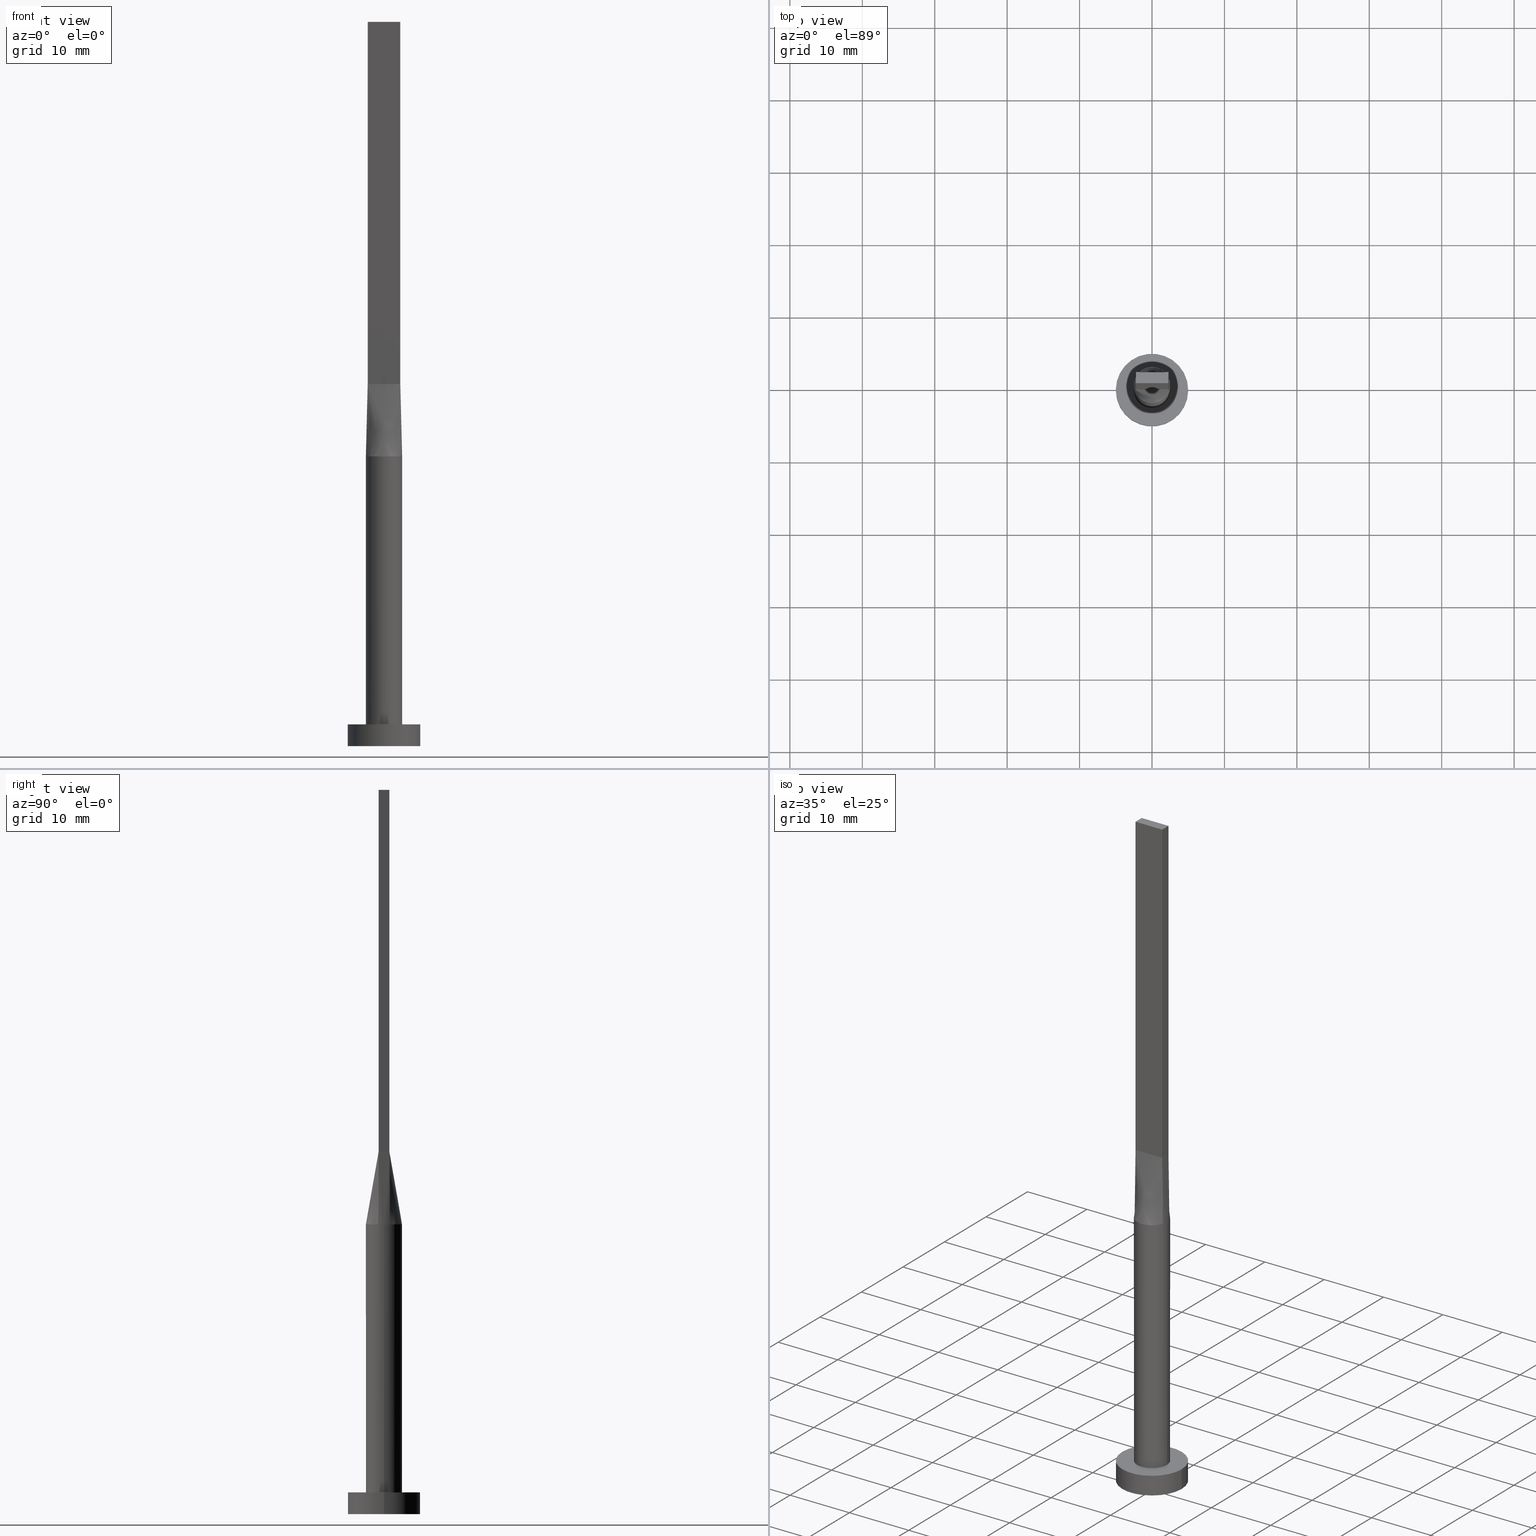
[diagram: canonical four-view strip — front | top / right | iso, engineering-drawing reading convention]
A machine part, canonical four-view strip (front | top / right | iso — engineering-drawing reading convention). The complete STEP part file that produces these views, byte-faithful:
ISO-10303-21;
HEADER;
FILE_DESCRIPTION (( 'STEP AP203' ),
    '1' );
FILE_NAME ('55a2.STEP',
    '2023-02-13T11:20:50',
    ( '' ),
    ( '' ),
    'SwSTEP 2.0',
    'SolidWorks 2019',
    '' );
FILE_SCHEMA (( 'CONFIG_CONTROL_DESIGN' ));
ENDSEC;

DATA;
#1 = CYLINDRICAL_SURFACE ( 'NONE', #577, 5.000000000000000000 ) ;
#2 = EDGE_CURVE ( 'NONE', #378, #394, #535, .T. ) ;
#3 = LINE ( 'NONE', #243, #179 ) ;
#4 = B_SPLINE_SURFACE_WITH_KNOTS ( 'NONE', 3, 1, ( 
 ( #30, #261 ),
 ( #441, #512 ),
 ( #389, #312 ),
 ( #481, #37 ),
 ( #355, #167 ),
 ( #80, #439 ),
 ( #472, #395 ),
 ( #521, #518 ),
 ( #478, #78 ),
 ( #73, #115 ),
 ( #214, #35 ),
 ( #218, #468 ),
 ( #398, #266 ),
 ( #359, #436 ),
 ( #402, #393 ),
 ( #165, #216 ),
 ( #475, #221 ),
 ( #258, #125 ) ),
 .UNSPECIFIED., .F., .F., .F.,
 ( 4, 2, 2, 2, 2, 2, 2, 2, 4 ),
 ( 2, 2 ),
 ( 0.000000000000000000, 0.1250000000000000555, 0.2500000000000001110, 0.3750000000000001110, 0.5000000000000001110, 0.6250000000000000000, 0.7500000000000000000, 0.8749999999999998890, 1.000000000000000000 ),
 ( 0.000000000000000000, 1.000000000000000000 ),
 .UNSPECIFIED. ) ;
#5 = FACE_BOUND ( 'NONE', #131, .T. ) ;
#6 = ORIENTED_EDGE ( 'NONE', *, *, #453, .F. ) ;
#7 = CARTESIAN_POINT ( 'NONE',  ( 0.000000000000000000, 0.000000000000000000, 40.00000000000000000 ) ) ;
#8 = ADVANCED_FACE ( 'NONE', ( #308 ), #522, .T. ) ;
#9 = FACE_OUTER_BOUND ( 'NONE', #129, .T. ) ;
#10 = VERTEX_POINT ( 'NONE', #525 ) ;
#11 = CARTESIAN_POINT ( 'NONE',  ( -2.309208245126284975, 0.9780694150420951027, 40.00000000000000000 ) ) ;
#12 = VECTOR ( 'NONE', #27, 1000.000000000000000 ) ;
#13 = CARTESIAN_POINT ( 'NONE',  ( -2.500000000000000444, -1.570839010700814298E-16, 40.00000000000000711 ) ) ;
#14 = ORIENTED_EDGE ( 'NONE', *, *, #332, .T. ) ;
#15 = AXIS2_PLACEMENT_3D ( 'NONE', #446, #43, #327 ) ;
#16 = VECTOR ( 'NONE', #310, 1000.000000000000000 ) ;
#17 = APPROVAL_DATE_TIME ( #150, #20 ) ;
#18 = CARTESIAN_POINT ( 'NONE',  ( -2.249999999999999556, 0.7500000000000002220, 100.0000000000000000 ) ) ;
#19 = ORIENTED_EDGE ( 'NONE', *, *, #361, .T. ) ;
#20 = APPROVAL ( #196, 'NEUR�EN�' ) ;
#21 = APPROVAL_ROLE ( '' ) ;
#22 = LINE ( 'NONE', #419, #202 ) ;
#23 = ORIENTED_EDGE ( 'NONE', *, *, #225, .T. ) ;
#24 = DATE_AND_TIME ( #340, #449 ) ;
#25 = VECTOR ( 'NONE', #93, 1000.000000000000000 ) ;
#26 = DIRECTION ( 'NONE',  ( 1.000000000000000000, 0.000000000000000000, 0.000000000000000000 ) ) ;
#27 = DIRECTION ( 'NONE',  ( -1.000000000000000000, 0.000000000000000000, 0.000000000000000000 ) ) ;
#28 = PERSON_AND_ORGANIZATION ( #438, #268 ) ;
#29 = VECTOR ( 'NONE', #239, 1000.000000000000114 ) ;
#30 = CARTESIAN_POINT ( 'NONE',  ( -2.371708245126284975, -0.7905694150420944366, 40.00000000000000000 ) ) ;
#31 = DIRECTION ( 'NONE',  ( 2.891205793294678819E-16, 1.000000000000000000, 0.000000000000000000 ) ) ;
#32 = ADVANCED_FACE ( 'NONE', ( #34 ), #390, .T. ) ;
#33 = CARTESIAN_POINT ( 'NONE',  ( -1.145194483530141527, 2.241235424885160921, 40.00000000000000000 ) ) ;
#34 = FACE_OUTER_BOUND ( 'NONE', #274, .T. ) ;
#35 = CARTESIAN_POINT ( 'NONE',  ( 0.3750000000000000000, -0.7499999999999996669, 50.00000000000000000 ) ) ;
#36 = VERTEX_POINT ( 'NONE', #403 ) ;
#37 = CARTESIAN_POINT ( 'NONE',  ( -1.499999999999999334, -0.7499999999999995559, 50.00000000000000000 ) ) ;
#38 = CARTESIAN_POINT ( 'NONE',  ( 2.250000000000000000, -0.7499999999999997780, 50.00000000000000000 ) ) ;
#39 = EDGE_CURVE ( 'NONE', #155, #212, #474, .T. ) ;
#40 = CARTESIAN_POINT ( 'NONE',  ( 2.371708245126284531, 0.7905694150420949917, 40.00000000000000000 ) ) ;
#41 = CARTESIAN_POINT ( 'NONE',  ( -2.371775648085652222, -0.7905922034696525325, 40.00000000000000000 ) ) ;
#42 =( LENGTH_UNIT ( ) NAMED_UNIT ( * ) SI_UNIT ( .MILLI., .METRE. ) );
#43 = DIRECTION ( 'NONE',  ( 0.000000000000000000, -1.000000000000000000, 0.000000000000000000 ) ) ;
#44 = VECTOR ( 'NONE', #85, 1000.000000000000000 ) ;
#45 = CARTESIAN_POINT ( 'NONE',  ( 0.000000000000000000, 0.000000000000000000, 0.000000000000000000 ) ) ;
#46 = ORIENTED_EDGE ( 'NONE', *, *, #75, .F. ) ;
#47 = AXIS2_PLACEMENT_3D ( 'NONE', #383, #281, #61 ) ;
#48 = DIRECTION ( 'NONE',  ( 0.000000000000000000, 0.000000000000000000, 1.000000000000000000 ) ) ;
#49 = DIRECTION ( 'NONE',  ( 1.000000000000000000, 0.000000000000000000, 0.000000000000000000 ) ) ;
#50 = DIRECTION ( 'NONE',  ( -0.01216982305197521208, 0.004056607683991797497, 0.9999177162851859979 ) ) ;
#51 = APPROVAL_PERSON_ORGANIZATION ( #301, #20, #21 ) ;
#52 = CC_DESIGN_PERSON_AND_ORGANIZATION_ASSIGNMENT ( #28, #203, ( #317 ) ) ;
#53 = LINE ( 'NONE', #528, #567 ) ;
#54 = CARTESIAN_POINT ( 'NONE',  ( 0.000000000000000000, 0.000000000000000000, 40.00000000000000000 ) ) ;
#55 = VERTEX_POINT ( 'NONE', #84 ) ;
#56 = CARTESIAN_POINT ( 'NONE',  ( -2.218933079238281536, 1.174882007251999871, 40.00000000000001421 ) ) ;
#57 = CYLINDRICAL_SURFACE ( 'NONE', #570, 5.000000000000000000 ) ;
#58 = ORIENTED_EDGE ( 'NONE', *, *, #127, .T. ) ;
#59 = COORDINATED_UNIVERSAL_TIME_OFFSET ( 1, 0, .AHEAD. ) ;
#60 = AXIS2_PLACEMENT_3D ( 'NONE', #174, #473, #31 ) ;
#61 = DIRECTION ( 'NONE',  ( 1.000000000000000000, 0.000000000000000000, 0.000000000000000000 ) ) ;
#62 = ORIENTED_EDGE ( 'NONE', *, *, #172, .T. ) ;
#63 = CIRCLE ( 'NONE', #47, 2.500000000000000000 ) ;
#64 = DATE_AND_TIME ( #344, #400 ) ;
#65 = AXIS2_PLACEMENT_3D ( 'NONE', #144, #331, #499 ) ;
#66 = DIRECTION ( 'NONE',  ( -2.891205793294678326E-16, 1.000000000000000000, -0.000000000000000000 ) ) ;
#67 = ORIENTED_EDGE ( 'NONE', *, *, #529, .F. ) ;
#68 = PERSON_AND_ORGANIZATION ( #438, #268 ) ;
#69 = CARTESIAN_POINT ( 'NONE',  ( -1.799471046981195199, 1.755719709239274229, 39.99999999999998579 ) ) ;
#70 = VERTEX_POINT ( 'NONE', #119 ) ;
#71 = DATE_AND_TIME ( #557, #124 ) ;
#72 = AXIS2_PLACEMENT_3D ( 'NONE', #530, #48, #576 ) ;
#73 = CARTESIAN_POINT ( 'NONE',  ( 0.3003163416900518912, -2.500000000000001332, 40.00000000000000000 ) ) ;
#74 = ORIENTED_EDGE ( 'NONE', *, *, #309, .F. ) ;
#75 = EDGE_CURVE ( 'NONE', #384, #503, #360, .T. ) ;
#76 = CARTESIAN_POINT ( 'NONE',  ( -2.218933079238281536, 1.174882007251999871, 40.00000000000001421 ) ) ;
#77 = EDGE_LOOP ( 'NONE', ( #464, #237, #157, #229 ) ) ;
#78 = CARTESIAN_POINT ( 'NONE',  ( -0.1874999999999997780, -0.7499999999999996669, 50.00000000000000000 ) ) ;
#79 = CARTESIAN_POINT ( 'NONE',  ( 2.250000000000000000, -0.7499999999999997780, 50.00000000000000000 ) ) ;
#80 = CARTESIAN_POINT ( 'NONE',  ( -1.390086206340439334, -2.094828891646495883, 40.00000000000000000 ) ) ;
#81 = ADVANCED_FACE ( 'NONE', ( #429 ), #267, .F. ) ;
#82 = CARTESIAN_POINT ( 'NONE',  ( -2.249999999999999556, 0.7500000000000002220, 100.0000000000000000 ) ) ;
#83 = CARTESIAN_POINT ( 'NONE',  ( 1.499999999999998890, 0.7500000000000002220, 50.00000000000000000 ) ) ;
#84 = CARTESIAN_POINT ( 'NONE',  ( 5.000000000000000000, 6.123233995736766282E-16, 3.000000000000000000 ) ) ;
#85 = DIRECTION ( 'NONE',  ( -0.000000000000000000, -0.000000000000000000, -1.000000000000000000 ) ) ;
#86 = DIRECTION ( 'NONE',  ( 1.000000000000000000, 0.000000000000000000, 0.000000000000000000 ) ) ;
#87 = EDGE_LOOP ( 'NONE', ( #262, #417 ) ) ;
#88 = CARTESIAN_POINT ( 'NONE',  ( -2.371708245126284531, 0.7905694150420944366, 40.00000000000000000 ) ) ;
#89 = CARTESIAN_POINT ( 'NONE',  ( -2.249999999999999556, 0.7500000000000002220, 50.00000000000000000 ) ) ;
#90 = ORIENTED_EDGE ( 'NONE', *, *, #39, .T. ) ;
#91 = ADVANCED_BREP_SHAPE_REPRESENTATION ( '55a2', ( #206, #326 ), #367 ) ;
#92 = AXIS2_PLACEMENT_3D ( 'NONE', #100, #456, #26 ) ;
#93 = DIRECTION ( 'NONE',  ( -2.891205793294678819E-16, -1.000000000000000000, 0.000000000000000000 ) ) ;
#94 = EDGE_LOOP ( 'NONE', ( #14, #181, #424, #440 ) ) ;
#95 = CIRCLE ( 'NONE', #423, 5.000000000000000000 ) ;
#96 = FACE_OUTER_BOUND ( 'NONE', #337, .T. ) ;
#97 = DIRECTION ( 'NONE',  ( -1.000000000000000000, 0.000000000000000000, 0.000000000000000000 ) ) ;
#98 = EDGE_CURVE ( 'NONE', #396, #384, #442, .T. ) ;
#99 = CARTESIAN_POINT ( 'NONE',  ( 1.874999999999999112, 0.7500000000000002220, 50.00000000000000000 ) ) ;
#100 = CARTESIAN_POINT ( 'NONE',  ( 0.000000000000000000, 0.000000000000000000, 0.000000000000000000 ) ) ;
#101 = ORIENTED_EDGE ( 'NONE', *, *, #353, .T. ) ;
#102 = PRODUCT ( '55a2', '55a2', '', ( #107 ) ) ;
#103 = CARTESIAN_POINT ( 'NONE',  ( -1.390086206340438890, 2.094828891646495883, 40.00000000000000000 ) ) ;
#104 = FACE_OUTER_BOUND ( 'NONE', #467, .T. ) ;
#105 = ORIENTED_EDGE ( 'NONE', *, *, #120, .F. ) ;
#106 = DESIGN_CONTEXT ( 'detailed design', #159, 'design' ) ;
#107 = MECHANICAL_CONTEXT ( 'NONE', #164, 'mechanical' ) ;
#108 = DIRECTION ( 'NONE',  ( -1.000000000000000000, 4.818676322157798238E-17, 0.000000000000000000 ) ) ;
#109 = ORIENTED_EDGE ( 'NONE', *, *, #504, .F. ) ;
#110 = COORDINATED_UNIVERSAL_TIME_OFFSET ( 1, 0, .AHEAD. ) ;
#111 = ADVANCED_FACE ( 'NONE', ( #526 ), #307, .T. ) ;
#112 = FACE_OUTER_BOUND ( 'NONE', #87, .T. ) ;
#113 = ORIENTED_EDGE ( 'NONE', *, *, #186, .F. ) ;
#114 = AXIS2_PLACEMENT_3D ( 'NONE', #7, #272, #192 ) ;
#115 = CARTESIAN_POINT ( 'NONE',  ( 0.1875000000000000278, -0.7499999999999996669, 50.00000000000000000 ) ) ;
#116 = VERTEX_POINT ( 'NONE', #79 ) ;
#117 = COORDINATED_UNIVERSAL_TIME_OFFSET ( 1, 0, .AHEAD. ) ;
#118 = CARTESIAN_POINT ( 'NONE',  ( -2.371795432964766359, 0.7905989074952441964, 40.00000000000000000 ) ) ;
#119 = CARTESIAN_POINT ( 'NONE',  ( -2.250000000000000000, -0.7499999999999995559, 100.0000000000000000 ) ) ;
#120 = EDGE_CURVE ( 'NONE', #55, #285, #354, .T. ) ;
#121 = PERSON_AND_ORGANIZATION ( #438, #268 ) ;
#122 = CARTESIAN_POINT ( 'NONE',  ( 2.309208245126284975, 0.9780694150420948807, 39.99999999999999289 ) ) ;
#123 = ORIENTED_EDGE ( 'NONE', *, *, #325, .T. ) ;
#124 = LOCAL_TIME ( 12, 20, 50.00000000000000000, #59 ) ;
#125 = CARTESIAN_POINT ( 'NONE',  ( 2.250000000000000000, -0.7499999999999997780, 50.00000000000000000 ) ) ;
#126 = CARTESIAN_POINT ( 'NONE',  ( 2.249999999999999556, 0.7500000000000002220, 100.0000000000000000 ) ) ;
#127 = EDGE_CURVE ( 'NONE', #503, #448, #188, .T. ) ;
#128 = CARTESIAN_POINT ( 'NONE',  ( -0.3003163416900526128, 2.499999999999999112, 40.00000000000000000 ) ) ;
#129 = EDGE_LOOP ( 'NONE', ( #113, #507, #123, #382 ) ) ;
#130 = CARTESIAN_POINT ( 'NONE',  ( 2.218933079238281980, 1.174882007252000315, 40.00000000000001421 ) ) ;
#131 = EDGE_LOOP ( 'NONE', ( #316, #328 ) ) ;
#132 = APPROVAL_PERSON_ORGANIZATION ( #121, #253, #514 ) ;
#133 = CARTESIAN_POINT ( 'NONE',  ( -0.3003163416900526128, 2.499999999999999112, 40.00000000000000000 ) ) ;
#134 = CARTESIAN_POINT ( 'NONE',  ( 0.000000000000000000, 0.000000000000000000, 3.000000000000000000 ) ) ;
#135 = CARTESIAN_POINT ( 'NONE',  ( 1.312499999999998890, 0.7500000000000002220, 50.00000000000000000 ) ) ;
#136 = DIRECTION ( 'NONE',  ( 1.000000000000000000, 0.000000000000000000, 0.000000000000000000 ) ) ;
#137 = CC_DESIGN_PERSON_AND_ORGANIZATION_ASSIGNMENT ( #465, #461, ( #102 ) ) ;
#138 = FACE_OUTER_BOUND ( 'NONE', #289, .T. ) ;
#139 = DIRECTION ( 'NONE',  ( 0.01216982305197525371, -0.004056607683991667393, 0.9999177162851859979 ) ) ;
#140 = VERTEX_POINT ( 'NONE', #226 ) ;
#141 = ADVANCED_FACE ( 'NONE', ( #138 ), #1, .T. ) ;
#142 = DIRECTION ( 'NONE',  ( -0.000000000000000000, -0.000000000000000000, -1.000000000000000000 ) ) ;
#143 = CARTESIAN_POINT ( 'NONE',  ( 1.964343640889990361, 1.563766543189047287, 40.00000000000000000 ) ) ;
#144 = CARTESIAN_POINT ( 'NONE',  ( 0.000000000000000000, 0.000000000000000000, 3.000000000000000000 ) ) ;
#145 = ORIENTED_EDGE ( 'NONE', *, *, #75, .T. ) ;
#146 = CARTESIAN_POINT ( 'NONE',  ( -1.799471046981195199, 1.755719709239274229, 39.99999999999998579 ) ) ;
#147 = DIRECTION ( 'NONE',  ( 1.000000000000000000, 0.000000000000000000, 0.000000000000000000 ) ) ;
#148 = ORIENTED_EDGE ( 'NONE', *, *, #127, .F. ) ;
#149 = CIRCLE ( 'NONE', #477, 2.500000000000000000 ) ;
#150 = DATE_AND_TIME ( #254, #200 ) ;
#151 = CARTESIAN_POINT ( 'NONE',  ( 2.310854122563142266, -0.7702847075210476069, 45.00000000000000000 ) ) ;
#152 = VERTEX_POINT ( 'NONE', #41 ) ;
#153 = EDGE_CURVE ( 'NONE', #394, #152, #397, .T. ) ;
#154 = CYLINDRICAL_SURFACE ( 'NONE', #324, 2.500000000000000000 ) ;
#155 = VERTEX_POINT ( 'NONE', #579 ) ;
#156 = CARTESIAN_POINT ( 'NONE',  ( 2.249999999999999556, 0.7500000000000002220, 50.00000000000000000 ) ) ;
#157 = ORIENTED_EDGE ( 'NONE', *, *, #225, .F. ) ;
#158 = CC_DESIGN_APPROVAL ( #253, ( #160 ) ) ;
#159 = APPLICATION_CONTEXT ( 'configuration controlled 3d designs of mechanical parts and assemblies' ) ;
#160 = PRODUCT_DEFINITION ( 'NEZN�M�', '', #317, #106 ) ;
#161 = CARTESIAN_POINT ( 'NONE',  ( 0.000000000000000000, 0.000000000000000000, 40.00000000000000000 ) ) ;
#162 = CARTESIAN_POINT ( 'NONE',  ( 2.499999999999999112, 0.2704627669472988161, 40.00000000000000000 ) ) ;
#163 = DATE_TIME_ROLE ( 'creation_date' ) ;
#164 = APPLICATION_CONTEXT ( 'configuration controlled 3d designs of mechanical parts and assemblies' ) ;
#165 = CARTESIAN_POINT ( 'NONE',  ( 2.218933079238280204, -1.174882007251999871, 40.00000000000000000 ) ) ;
#166 = CARTESIAN_POINT ( 'NONE',  ( 2.249999999999999556, 0.5000000000000007772, 50.00000000000000000 ) ) ;
#167 = CARTESIAN_POINT ( 'NONE',  ( -1.312499999999999334, -0.7499999999999995559, 50.00000000000000000 ) ) ;
#168 = ORIENTED_EDGE ( 'NONE', *, *, #565, .T. ) ;
#169 = VECTOR ( 'NONE', #50, 1000.000000000000114 ) ;
#170 = DIRECTION ( 'NONE',  ( 1.000000000000000000, -4.440892098500626162E-15, 0.000000000000000000 ) ) ;
#171 = ORIENTED_EDGE ( 'NONE', *, *, #453, .T. ) ;
#172 = EDGE_CURVE ( 'NONE', #448, #116, #581, .T. ) ;
#173 = CARTESIAN_POINT ( 'NONE',  ( 1.964343640889990361, 1.563766543189047287, 40.00000000000000000 ) ) ;
#174 = CARTESIAN_POINT ( 'NONE',  ( -2.249999999999999556, 0.7500000000000002220, 100.0000000000000000 ) ) ;
#175 = CARTESIAN_POINT ( 'NONE',  ( -0.3750000000000008882, 0.7500000000000003331, 50.00000000000000000 ) ) ;
#176 = DIRECTION ( 'NONE',  ( -1.000000000000000000, -0.000000000000000000, -0.000000000000000000 ) ) ;
#177 = CC_DESIGN_APPROVAL ( #231, ( #317 ) ) ;
#178 = CC_DESIGN_DATE_AND_TIME_ASSIGNMENT ( #64, #163, ( #160 ) ) ;
#179 = VECTOR ( 'NONE', #506, 1000.000000000000000 ) ;
#180 = LINE ( 'NONE', #492, #245 ) ;
#181 = ORIENTED_EDGE ( 'NONE', *, *, #413, .T. ) ;
#182 = CARTESIAN_POINT ( 'NONE',  ( -2.249999999999999556, 0.5000000000000000000, 50.00000000000000000 ) ) ;
#183 = B_SPLINE_CURVE_WITH_KNOTS ( 'NONE', 3,
 ( #571, #122, #432, #173, #306, #563, #255, #524, #348, #128, #299, #33, #568, #69, #428, #76, #558, #118 ),
 .UNSPECIFIED., .F., .F.,
 ( 4, 2, 2, 2, 2, 2, 2, 2, 4 ),
 ( 0.000000000000000000, 0.1250000000000000000, 0.2500000000000000000, 0.3750000000000000000, 0.5000000000000000000, 0.6250000000000000000, 0.7500000000000000000, 0.8750000000000000000, 1.000000000000000000 ),
 .UNSPECIFIED. ) ;
#184 = DIRECTION ( 'NONE',  ( -1.000000000000000000, 0.000000000000000000, 0.000000000000000000 ) ) ;
#185 = EDGE_LOOP ( 'NONE', ( #191, #168, #292, #363, #201 ) ) ;
#186 = EDGE_CURVE ( 'NONE', #55, #10, #180, .T. ) ;
#187 = CC_DESIGN_APPROVAL ( #20, ( #235 ) ) ;
#188 = LINE ( 'NONE', #410, #25 ) ;
#189 = CARTESIAN_POINT ( 'NONE',  ( 2.250000000000000000, -0.7499999999999997780, 100.0000000000000000 ) ) ;
#190 = LINE ( 'NONE', #18, #494 ) ;
#191 = ORIENTED_EDGE ( 'NONE', *, *, #511, .T. ) ;
#192 = DIRECTION ( 'NONE',  ( 1.000000000000000000, 0.000000000000000000, 0.000000000000000000 ) ) ;
#193 = B_SPLINE_SURFACE_WITH_KNOTS ( 'NONE', 3, 1, ( 
 ( #40, #269 ),
 ( #531, #578 ),
 ( #130, #99 ),
 ( #143, #83 ),
 ( #498, #135 ),
 ( #330, #490 ),
 ( #415, #444 ),
 ( #364, #287 ),
 ( #320, #487 ),
 ( #133, #238 ),
 ( #223, #175 ),
 ( #283, #404 ),
 ( #103, #458 ),
 ( #146, #575 ),
 ( #455, #542 ),
 ( #56, #234 ),
 ( #11, #318 ),
 ( #88, #362 ) ),
 .UNSPECIFIED., .F., .F., .F.,
 ( 4, 2, 2, 2, 2, 2, 2, 2, 4 ),
 ( 2, 2 ),
 ( 0.000000000000000000, 0.1250000000000000000, 0.2500000000000000000, 0.3750000000000000000, 0.5000000000000000000, 0.6250000000000000000, 0.7500000000000000000, 0.8750000000000000000, 1.000000000000000000 ),
 ( 0.000000000000000000, 1.000000000000000000 ),
 .UNSPECIFIED. ) ;
#194 = CARTESIAN_POINT ( 'NONE',  ( 2.249999999999999556, 0.7500000000000002220, 100.0000000000000000 ) ) ;
#195 = ORIENTED_EDGE ( 'NONE', *, *, #242, .T. ) ;
#196 = APPROVAL_STATUS ( 'not_yet_approved' ) ;
#197 = CIRCLE ( 'NONE', #246, 5.000000000000000000 ) ;
#198 = CARTESIAN_POINT ( 'NONE',  ( 0.000000000000000000, 0.000000000000000000, 3.000000000000000000 ) ) ;
#199 = EDGE_CURVE ( 'NONE', #396, #346, #228, .T. ) ;
#200 = LOCAL_TIME ( 12, 20, 50.00000000000000000, #379 ) ;
#201 = ORIENTED_EDGE ( 'NONE', *, *, #413, .F. ) ;
#202 = VECTOR ( 'NONE', #291, 1000.000000000000000 ) ;
#203 = PERSON_AND_ORGANIZATION_ROLE ( 'creator' ) ;
#204 = DIRECTION ( 'NONE',  ( -0.000000000000000000, -0.000000000000000000, -1.000000000000000000 ) ) ;
#205 = ORIENTED_EDGE ( 'NONE', *, *, #98, .F. ) ;
#206 = MANIFOLD_SOLID_BREP ( 'P�idat vysunut�m5', #322 ) ;
#207 = FACE_OUTER_BOUND ( 'NONE', #343, .T. ) ;
#208 = ORIENTED_EDGE ( 'NONE', *, *, #242, .F. ) ;
#209 = ADVANCED_FACE ( 'NONE', ( #405 ), #573, .T. ) ;
#210 = AXIS2_PLACEMENT_3D ( 'NONE', #217, #219, #399 ) ;
#211 = CARTESIAN_POINT ( 'NONE',  ( 2.500000000000000000, 3.061616997868383141E-16, 40.00000000000000000 ) ) ;
#212 = VERTEX_POINT ( 'NONE', #230 ) ;
#213 = PERSON_AND_ORGANIZATION ( #438, #268 ) ;
#214 = CARTESIAN_POINT ( 'NONE',  ( 0.6000386972366476002, -2.444291348568452538, 40.00000000000000000 ) ) ;
#215 = CARTESIAN_POINT ( 'NONE',  ( 2.249999999999999556, 0.2500000000000011102, 50.00000000000000000 ) ) ;
#216 = CARTESIAN_POINT ( 'NONE',  ( 1.874999999999999556, -0.7499999999999997780, 50.00000000000000000 ) ) ;
#217 = CARTESIAN_POINT ( 'NONE',  ( 0.000000000000000000, 0.000000000000000000, 3.000000000000000000 ) ) ;
#218 = CARTESIAN_POINT ( 'NONE',  ( 1.145194483530141083, -2.241235424885161365, 40.00000000000000000 ) ) ;
#219 = DIRECTION ( 'NONE',  ( 0.000000000000000000, 0.000000000000000000, 1.000000000000000000 ) ) ;
#220 = CC_DESIGN_PERSON_AND_ORGANIZATION_ASSIGNMENT ( #213, #435, ( #235 ) ) ;
#221 = CARTESIAN_POINT ( 'NONE',  ( 2.062499999999999556, -0.7499999999999997780, 50.00000000000000000 ) ) ;
#222 = CARTESIAN_POINT ( 'NONE',  ( 2.455041578459617568, -0.5405694150420953248, 39.99999999999999289 ) ) ;
#223 = CARTESIAN_POINT ( 'NONE',  ( -0.6000386972366482663, 2.444291348568452094, 40.00000000000000000 ) ) ;
#224 = CARTESIAN_POINT ( 'NONE',  ( -2.250000000000000000, -0.7499999999999995559, 50.00000000000000000 ) ) ;
#225 = EDGE_CURVE ( 'NONE', #346, #503, #536, .T. ) ;
#226 = CARTESIAN_POINT ( 'NONE',  ( 2.250000000000000000, -0.7499999999999997780, 100.0000000000000000 ) ) ;
#227 = CC_DESIGN_SECURITY_CLASSIFICATION ( #235, ( #317 ) ) ;
#228 = LINE ( 'NONE', #270, #493 ) ;
#229 = ORIENTED_EDGE ( 'NONE', *, *, #341, .F. ) ;
#230 = CARTESIAN_POINT ( 'NONE',  ( -2.500000000000000000, 0.000000000000000000, 3.000000000000000000 ) ) ;
#231 = APPROVAL ( #304, 'NEUR�EN�' ) ;
#232 = CARTESIAN_POINT ( 'NONE',  ( 2.371798206859841329, -0.7905998626979697796, 40.00000000000000000 ) ) ;
#233 = AXIS2_PLACEMENT_3D ( 'NONE', #313, #486, #437 ) ;
#234 = CARTESIAN_POINT ( 'NONE',  ( -1.875000000000000000, 0.7500000000000002220, 50.00000000000000000 ) ) ;
#235 = SECURITY_CLASSIFICATION ( '', '', #290 ) ;
#236 = CARTESIAN_POINT ( 'NONE',  ( 2.250000000000000000, -0.7499999999999997780, 100.0000000000000000 ) ) ;
#237 = ORIENTED_EDGE ( 'NONE', *, *, #263, .T. ) ;
#238 = CARTESIAN_POINT ( 'NONE',  ( -0.1875000000000009714, 0.7500000000000003331, 50.00000000000000711 ) ) ;
#239 = DIRECTION ( 'NONE',  ( -0.01216982305197525371, -0.004056607683991722904, 0.9999177162851859979 ) ) ;
#240 = ORIENTED_EDGE ( 'NONE', *, *, #2, .T. ) ;
#241 =( NAMED_UNIT ( * ) PLANE_ANGLE_UNIT ( ) SI_UNIT ( $, .RADIAN. ) );
#242 = EDGE_CURVE ( 'NONE', #10, #550, #197, .T. ) ;
#243 = CARTESIAN_POINT ( 'NONE',  ( -2.250000000000000000, -0.7499999999999995559, 100.0000000000000000 ) ) ;
#244 = ORIENTED_EDGE ( 'NONE', *, *, #2, .F. ) ;
#245 = VECTOR ( 'NONE', #497, 1000.000000000000000 ) ;
#246 = AXIS2_PLACEMENT_3D ( 'NONE', #365, #488, #86 ) ;
#247 = LINE ( 'NONE', #459, #29 ) ;
#248 = ORIENTED_EDGE ( 'NONE', *, *, #392, .F. ) ;
#249 = AXIS2_PLACEMENT_3D ( 'NONE', #555, #551, #345 ) ;
#250 = PERSON_AND_ORGANIZATION_ROLE ( 'design_supplier' ) ;
#251 = DIRECTION ( 'NONE',  ( -1.000000000000000000, 0.000000000000000000, 0.000000000000000000 ) ) ;
#252 = EDGE_LOOP ( 'NONE', ( #58, #74, #6, #145 ) ) ;
#253 = APPROVAL ( #547, 'NEUR�EN�' ) ;
#254 = CALENDAR_DATE ( 2023, 13, 2 ) ;
#255 = CARTESIAN_POINT ( 'NONE',  ( 1.145194483530141749, 2.241235424885160921, 40.00000000000000000 ) ) ;
#256 = ORIENTED_EDGE ( 'NONE', *, *, #263, .F. ) ;
#257 = PERSON_AND_ORGANIZATION ( #438, #268 ) ;
#258 = CARTESIAN_POINT ( 'NONE',  ( 2.371708245126284531, -0.7905694150420953248, 40.00000000000000000 ) ) ;
#259 = DIRECTION ( 'NONE',  ( 1.000000000000000000, 0.000000000000000000, 0.000000000000000000 ) ) ;
#260 = PERSON_AND_ORGANIZATION_ROLE ( 'creator' ) ;
#261 = CARTESIAN_POINT ( 'NONE',  ( -2.250000000000000000, -0.7499999999999995559, 50.00000000000000000 ) ) ;
#262 = ORIENTED_EDGE ( 'NONE', *, *, #409, .T. ) ;
#263 = EDGE_CURVE ( 'NONE', #378, #503, #278, .T. ) ;
#264 = FACE_OUTER_BOUND ( 'NONE', #94, .T. ) ;
#265 = CARTESIAN_POINT ( 'NONE',  ( 0.000000000000000000, 0.000000000000000000, 3.000000000000000000 ) ) ;
#266 = CARTESIAN_POINT ( 'NONE',  ( 0.9375000000000001110, -0.7499999999999997780, 50.00000000000000000 ) ) ;
#267 = PLANE ( 'NONE',  #60 ) ;
#268 = ORGANIZATION ( 'NEUR�EN�', 'NEUR�EN�', '' ) ;
#269 = CARTESIAN_POINT ( 'NONE',  ( 2.249999999999999556, 0.7500000000000002220, 50.00000000000000000 ) ) ;
#270 = CARTESIAN_POINT ( 'NONE',  ( 2.249999999999999556, 0.7500000000000002220, 100.0000000000000000 ) ) ;
#271 = ADVANCED_FACE ( 'NONE', ( #450 ), #370, .F. ) ;
#272 = DIRECTION ( 'NONE',  ( 0.000000000000000000, 0.000000000000000000, 1.000000000000000000 ) ) ;
#273 = CARTESIAN_POINT ( 'NONE',  ( -2.249999999999999556, 0.2500000000000000555, 50.00000000000000000 ) ) ;
#274 = EDGE_LOOP ( 'NONE', ( #375, #171, #457, #101 ) ) ;
#275 = CARTESIAN_POINT ( 'NONE',  ( -2.310854122563142266, -0.7702847075210469407, 45.00000000000000000 ) ) ;
#276 = CARTESIAN_POINT ( 'NONE',  ( -2.455041578459617568, 0.5405694150420949917, 39.99999999999999289 ) ) ;
#277 = VECTOR ( 'NONE', #376, 1000.000000000000114 ) ;
#278 = LINE ( 'NONE', #447, #566 ) ;
#279 = ADVANCED_FACE ( 'NONE', ( #96 ), #411, .F. ) ;
#280 = CARTESIAN_POINT ( 'NONE',  ( 0.000000000000000000, 0.000000000000000000, 3.000000000000000000 ) ) ;
#281 = DIRECTION ( 'NONE',  ( 0.000000000000000000, 0.000000000000000000, 1.000000000000000000 ) ) ;
#282 = AXIS2_PLACEMENT_3D ( 'NONE', #265, #371, #136 ) ;
#283 = CARTESIAN_POINT ( 'NONE',  ( -1.145194483530141527, 2.241235424885160921, 40.00000000000000000 ) ) ;
#284 = DIRECTION ( 'NONE',  ( 4.818676322157798238E-17, 1.000000000000000000, -0.000000000000000000 ) ) ;
#285 = VERTEX_POINT ( 'NONE', #496 ) ;
#286 = CC_DESIGN_PERSON_AND_ORGANIZATION_ASSIGNMENT ( #347, #260, ( #160 ) ) ;
#287 = CARTESIAN_POINT ( 'NONE',  ( 0.3749999999999989453, 0.7500000000000003331, 50.00000000000000711 ) ) ;
#288 = CARTESIAN_POINT ( 'NONE',  ( -2.249999999999999556, 0.7500000000000002220, 100.0000000000000000 ) ) ;
#289 = EDGE_LOOP ( 'NONE', ( #105, #482, #195, #460 ) ) ;
#290 = SECURITY_CLASSIFICATION_LEVEL ( 'unclassified' ) ;
#291 = DIRECTION ( 'NONE',  ( -0.000000000000000000, -0.000000000000000000, -1.000000000000000000 ) ) ;
#292 = ORIENTED_EDGE ( 'NONE', *, *, #341, .T. ) ;
#293 = AXIS2_PLACEMENT_3D ( 'NONE', #433, #349, #259 ) ;
#294 = EDGE_CURVE ( 'NONE', #212, #155, #149, .T. ) ;
#295 = AXIS2_PLACEMENT_3D ( 'NONE', #45, #534, #412 ) ;
#296 = FACE_OUTER_BOUND ( 'NONE', #516, .T. ) ;
#297 = VERTEX_POINT ( 'NONE', #232 ) ;
#298 = DIRECTION ( 'NONE',  ( 0.000000000000000000, 0.000000000000000000, 1.000000000000000000 ) ) ;
#299 = CARTESIAN_POINT ( 'NONE',  ( -0.6000386972366482663, 2.444291348568452094, 40.00000000000000000 ) ) ;
#300 = ORIENTED_EDGE ( 'NONE', *, *, #199, .F. ) ;
#301 = PERSON_AND_ORGANIZATION ( #438, #268 ) ;
#302 = FACE_OUTER_BOUND ( 'NONE', #77, .T. ) ;
#303 = DIRECTION ( 'NONE',  ( -0.000000000000000000, -0.000000000000000000, -1.000000000000000000 ) ) ;
#304 = APPROVAL_STATUS ( 'not_yet_approved' ) ;
#305 = VECTOR ( 'NONE', #329, 1000.000000000000000 ) ;
#306 = CARTESIAN_POINT ( 'NONE',  ( 1.799471046981194977, 1.755719709239274007, 40.00000000000000000 ) ) ;
#307 = B_SPLINE_SURFACE_WITH_KNOTS ( 'NONE', 3, 1, ( 
 ( #564, #38 ),
 ( #222, #311 ),
 ( #559, #562 ),
 ( #162, #215 ),
 ( #476, #166 ),
 ( #356, #479 ) ),
 .UNSPECIFIED., .F., .F., .F.,
 ( 4, 2, 4 ),
 ( 2, 2 ),
 ( 0.000000000000000000, 0.5000000000000000000, 1.000000000000000000 ),
 ( 0.000000000000000000, 1.000000000000000000 ),
 .UNSPECIFIED. ) ;
#308 = FACE_OUTER_BOUND ( 'NONE', #552, .T. ) ;
#309 = EDGE_CURVE ( 'NONE', #70, #448, #3, .T. ) ;
#310 = DIRECTION ( 'NONE',  ( -0.000000000000000000, -0.000000000000000000, -1.000000000000000000 ) ) ;
#311 = CARTESIAN_POINT ( 'NONE',  ( 2.250000000000000000, -0.4999999999999991673, 50.00000000000000000 ) ) ;
#312 = CARTESIAN_POINT ( 'NONE',  ( -1.874999999999999556, -0.7499999999999995559, 50.00000000000000000 ) ) ;
#313 = CARTESIAN_POINT ( 'NONE',  ( 0.000000000000000000, 0.000000000000000000, 100.0000000000000000 ) ) ;
#314 = LINE ( 'NONE', #275, #277 ) ;
#315 = ADVANCED_FACE ( 'NONE', ( #207 ), #154, .T. ) ;
#316 = ORIENTED_EDGE ( 'NONE', *, *, #294, .F. ) ;
#317 = PRODUCT_DEFINITION_FORMATION_WITH_SPECIFIED_SOURCE ( 'LIBOVOLN�', '', #102, .NOT_KNOWN. ) ;
#318 = CARTESIAN_POINT ( 'NONE',  ( -2.062499999999999556, 0.7500000000000002220, 50.00000000000000000 ) ) ;
#319 = CARTESIAN_POINT ( 'NONE',  ( -2.249999999999999556, -0.2499999999999998335, 50.00000000000000000 ) ) ;
#320 = CARTESIAN_POINT ( 'NONE',  ( 0.3003163416900527238, 2.499999999999999556, 40.00000000000000000 ) ) ;
#321 = CARTESIAN_POINT ( 'NONE',  ( -2.250000000000000000, -0.4999999999999997780, 50.00000000000000000 ) ) ;
#322 = CLOSED_SHELL ( 'NONE', ( #8, #141, #385, #470, #271, #315, #495, #111, #209, #523, #279, #81, #373, #462, #32 ) ) ;
#323 = CARTESIAN_POINT ( 'NONE',  ( -2.455041578459618012, -0.5405694150420945476, 40.00000000000000000 ) ) ;
#324 = AXIS2_PLACEMENT_3D ( 'NONE', #54, #204, #97 ) ;
#325 = EDGE_CURVE ( 'NONE', #285, #550, #377, .T. ) ;
#326 = AXIS2_PLACEMENT_3D ( 'NONE', #471, #298, #350 ) ;
#327 = DIRECTION ( 'NONE',  ( 0.000000000000000000, -0.000000000000000000, -1.000000000000000000 ) ) ;
#328 = ORIENTED_EDGE ( 'NONE', *, *, #39, .F. ) ;
#329 = DIRECTION ( 'NONE',  ( 1.000000000000000000, -4.818676322157797621E-17, 0.000000000000000000 ) ) ;
#330 = CARTESIAN_POINT ( 'NONE',  ( 1.390086206340439112, 2.094828891646494995, 40.00000000000000000 ) ) ;
#331 = DIRECTION ( 'NONE',  ( 0.000000000000000000, 0.000000000000000000, 1.000000000000000000 ) ) ;
#332 = EDGE_CURVE ( 'NONE', #152, #297, #63, .T. ) ;
#333 = ORIENTED_EDGE ( 'NONE', *, *, #309, .T. ) ;
#334 = CIRCLE ( 'NONE', #114, 2.500000000000000000 ) ;
#335 = PRODUCT_DEFINITION_SHAPE ( 'NONE', 'NONE',  #160 ) ;
#336 = DIRECTION ( 'NONE',  ( -0.000000000000000000, -0.000000000000000000, -1.000000000000000000 ) ) ;
#337 = EDGE_LOOP ( 'NONE', ( #23, #46, #205, #556 ) ) ;
#338 = CARTESIAN_POINT ( 'NONE',  ( -2.250000000000000000, -0.7499999999999995559, 50.00000000000000000 ) ) ;
#339 = ORIENTED_EDGE ( 'NONE', *, *, #511, .F. ) ;
#340 = CALENDAR_DATE ( 2023, 13, 2 ) ;
#341 = EDGE_CURVE ( 'NONE', #36, #346, #247, .T. ) ;
#342 = LINE ( 'NONE', #236, #434 ) ;
#343 = EDGE_LOOP ( 'NONE', ( #513, #339, #537, #469, #580, #545 ) ) ;
#344 = CALENDAR_DATE ( 2023, 13, 2 ) ;
#345 = DIRECTION ( 'NONE',  ( 2.891205793294678819E-16, -1.000000000000000000, 0.000000000000000000 ) ) ;
#346 = VERTEX_POINT ( 'NONE', #156 ) ;
#347 = PERSON_AND_ORGANIZATION ( #438, #268 ) ;
#348 = CARTESIAN_POINT ( 'NONE',  ( 0.3003163416900527238, 2.499999999999999556, 40.00000000000000000 ) ) ;
#349 = DIRECTION ( 'NONE',  ( 0.000000000000000000, 0.000000000000000000, 1.000000000000000000 ) ) ;
#350 = DIRECTION ( 'NONE',  ( 1.000000000000000000, 0.000000000000000000, 0.000000000000000000 ) ) ;
#351 = LINE ( 'NONE', #211, #16 ) ;
#352 = DIRECTION ( 'NONE',  ( -0.000000000000000000, -0.000000000000000000, -1.000000000000000000 ) ) ;
#353 = EDGE_CURVE ( 'NONE', #140, #396, #342, .T. ) ;
#354 = CIRCLE ( 'NONE', #282, 5.000000000000000000 ) ;
#355 = CARTESIAN_POINT ( 'NONE',  ( -1.799471046981195421, -1.755719709239273785, 40.00000000000000000 ) ) ;
#356 = CARTESIAN_POINT ( 'NONE',  ( 2.371708245126284531, 0.7905694150420949917, 40.00000000000000000 ) ) ;
#357 = CIRCLE ( 'NONE', #485, 2.500000000000000000 ) ;
#358 = VECTOR ( 'NONE', #66, 1000.000000000000000 ) ;
#359 = CARTESIAN_POINT ( 'NONE',  ( 1.799471046981195199, -1.755719709239274229, 39.99999999999998579 ) ) ;
#360 = LINE ( 'NONE', #82, #527 ) ;
#361 = EDGE_CURVE ( 'NONE', #116, #346, #463, .T. ) ;
#362 = CARTESIAN_POINT ( 'NONE',  ( -2.249999999999999556, 0.7500000000000002220, 50.00000000000000000 ) ) ;
#363 = ORIENTED_EDGE ( 'NONE', *, *, #361, .F. ) ;
#364 = CARTESIAN_POINT ( 'NONE',  ( 0.6000386972366480443, 2.444291348568451649, 40.00000000000000000 ) ) ;
#365 = CARTESIAN_POINT ( 'NONE',  ( 0.000000000000000000, 0.000000000000000000, 0.000000000000000000 ) ) ;
#366 = ORIENTED_EDGE ( 'NONE', *, *, #153, .T. ) ;
#367 =( GEOMETRIC_REPRESENTATION_CONTEXT ( 3 ) GLOBAL_UNCERTAINTY_ASSIGNED_CONTEXT ( ( #388 ) ) GLOBAL_UNIT_ASSIGNED_CONTEXT ( ( #42, #241, #406 ) ) REPRESENTATION_CONTEXT ( 'NONE', 'WORKASPACE' ) );
#368 = CARTESIAN_POINT ( 'NONE',  ( -2.500000000000000888, 0.2704627669472991491, 40.00000000000001421 ) ) ;
#369 = ORIENTED_EDGE ( 'NONE', *, *, #574, .F. ) ;
#370 = PLANE ( 'NONE',  #295 ) ;
#371 = DIRECTION ( 'NONE',  ( 0.000000000000000000, 0.000000000000000000, 1.000000000000000000 ) ) ;
#372 = CARTESIAN_POINT ( 'NONE',  ( -2.250000000000000000, -0.7499999999999995559, 50.00000000000000000 ) ) ;
#373 = ADVANCED_FACE ( 'NONE', ( #104 ), #416, .F. ) ;
#374 = CARTESIAN_POINT ( 'NONE',  ( -5.000000000000000000, 0.000000000000000000, 3.000000000000000000 ) ) ;
#375 = ORIENTED_EDGE ( 'NONE', *, *, #98, .T. ) ;
#376 = DIRECTION ( 'NONE',  ( -0.01216982305197525371, -0.004056607683991732445, -0.9999177162851859979 ) ) ;
#377 = LINE ( 'NONE', #374, #548 ) ;
#378 = VERTEX_POINT ( 'NONE', #508 ) ;
#379 = COORDINATED_UNIVERSAL_TIME_OFFSET ( 1, 0, .AHEAD. ) ;
#380 = LINE ( 'NONE', #151, #169 ) ;
#381 = AXIS2_PLACEMENT_3D ( 'NONE', #454, #284, #108 ) ;
#382 = ORIENTED_EDGE ( 'NONE', *, *, #480, .T. ) ;
#383 = CARTESIAN_POINT ( 'NONE',  ( 0.000000000000000000, 0.000000000000000000, 40.00000000000000000 ) ) ;
#384 = VERTEX_POINT ( 'NONE', #288 ) ;
#385 = ADVANCED_FACE ( 'NONE', ( #9 ), #57, .T. ) ;
#386 = CARTESIAN_POINT ( 'NONE',  ( 2.499999999999999556, 3.110810548879990207E-17, 40.00000000000000711 ) ) ;
#387 = ORIENTED_EDGE ( 'NONE', *, *, #353, .F. ) ;
#388 = UNCERTAINTY_MEASURE_WITH_UNIT (LENGTH_MEASURE( 1.000000000000000082E-05 ), #42, 'distance_accuracy_value', 'NONE');
#389 = CARTESIAN_POINT ( 'NONE',  ( -2.218933079238281980, -1.174882007251999427, 40.00000000000000711 ) ) ;
#390 = PLANE ( 'NONE',  #233 ) ;
#391 = APPROVAL_DATE_TIME ( #24, #231 ) ;
#392 = EDGE_CURVE ( 'NONE', #394, #212, #22, .T. ) ;
#393 = CARTESIAN_POINT ( 'NONE',  ( 1.499999999999999556, -0.7499999999999997780, 50.00000000000000000 ) ) ;
#394 = VERTEX_POINT ( 'NONE', #13 ) ;
#395 = CARTESIAN_POINT ( 'NONE',  ( -0.7499999999999993339, -0.7499999999999995559, 50.00000000000000000 ) ) ;
#396 = VERTEX_POINT ( 'NONE', #194 ) ;
#397 = CIRCLE ( 'NONE', #72, 2.500000000000000000 ) ;
#398 = CARTESIAN_POINT ( 'NONE',  ( 1.390086206340438890, -2.094828891646495883, 40.00000000000000000 ) ) ;
#399 = DIRECTION ( 'NONE',  ( 1.000000000000000000, 0.000000000000000000, 0.000000000000000000 ) ) ;
#400 = LOCAL_TIME ( 12, 20, 50.00000000000000000, #117 ) ;
#401 = PRODUCT_RELATED_PRODUCT_CATEGORY ( 'detail', '', ( #102 ) ) ;
#402 = CARTESIAN_POINT ( 'NONE',  ( 1.964343640889991249, -1.563766543189047953, 40.00000000000002132 ) ) ;
#403 = CARTESIAN_POINT ( 'NONE',  ( 2.371772892450305648, 0.7905912578404317159, 40.00000000000000000 ) ) ;
#404 = CARTESIAN_POINT ( 'NONE',  ( -0.7500000000000006661, 0.7500000000000002220, 50.00000000000000000 ) ) ;
#405 = FACE_OUTER_BOUND ( 'NONE', #509, .T. ) ;
#406 =( NAMED_UNIT ( * ) SI_UNIT ( $, .STERADIAN. ) SOLID_ANGLE_UNIT ( ) );
#407 = DIRECTION ( 'NONE',  ( -0.000000000000000000, -0.000000000000000000, -1.000000000000000000 ) ) ;
#408 = VECTOR ( 'NONE', #176, 1000.000000000000000 ) ;
#409 = EDGE_CURVE ( 'NONE', #285, #55, #95, .T. ) ;
#410 = CARTESIAN_POINT ( 'NONE',  ( -2.249999999999999556, 0.7500000000000002220, 50.00000000000000000 ) ) ;
#411 = PLANE ( 'NONE',  #15 ) ;
#412 = DIRECTION ( 'NONE',  ( 1.000000000000000000, 0.000000000000000000, -0.000000000000000000 ) ) ;
#413 = EDGE_CURVE ( 'NONE', #297, #116, #380, .T. ) ;
#414 = DIRECTION ( 'NONE',  ( -2.891205793294678819E-16, -1.000000000000000000, 0.000000000000000000 ) ) ;
#415 = CARTESIAN_POINT ( 'NONE',  ( 1.145194483530141749, 2.241235424885160921, 40.00000000000000000 ) ) ;
#416 = PLANE ( 'NONE',  #381 ) ;
#417 = ORIENTED_EDGE ( 'NONE', *, *, #120, .T. ) ;
#418 = CARTESIAN_POINT ( 'NONE',  ( -5.000000000000000000, 0.000000000000000000, 0.000000000000000000 ) ) ;
#419 = CARTESIAN_POINT ( 'NONE',  ( -2.500000000000000000, 0.000000000000000000, 40.00000000000000000 ) ) ;
#420 = ORIENTED_EDGE ( 'NONE', *, *, #480, .F. ) ;
#421 = DATE_TIME_ROLE ( 'classification_date' ) ;
#422 = DIRECTION ( 'NONE',  ( -0.000000000000000000, -0.000000000000000000, -1.000000000000000000 ) ) ;
#423 = AXIS2_PLACEMENT_3D ( 'NONE', #198, #549, #147 ) ;
#424 = ORIENTED_EDGE ( 'NONE', *, *, #172, .F. ) ;
#425 = APPLICATION_PROTOCOL_DEFINITION ( 'international standard', 'config_control_design', 1994, #159 ) ;
#426 = PLANE ( 'NONE',  #249 ) ;
#427 = EDGE_LOOP ( 'NONE', ( #420, #208 ) ) ;
#428 = CARTESIAN_POINT ( 'NONE',  ( -1.964343640889990805, 1.563766543189048175, 40.00000000000000711 ) ) ;
#429 = FACE_OUTER_BOUND ( 'NONE', #252, .T. ) ;
#430 = APPROVAL_ROLE ( '' ) ;
#431 = CC_DESIGN_PERSON_AND_ORGANIZATION_ASSIGNMENT ( #68, #250, ( #317 ) ) ;
#432 = CARTESIAN_POINT ( 'NONE',  ( 2.218933079238281980, 1.174882007252000315, 40.00000000000001421 ) ) ;
#433 = CARTESIAN_POINT ( 'NONE',  ( 0.000000000000000000, 0.000000000000000000, 40.00000000000000000 ) ) ;
#434 = VECTOR ( 'NONE', #543, 1000.000000000000000 ) ;
#435 = PERSON_AND_ORGANIZATION_ROLE ( 'classification_officer' ) ;
#436 = CARTESIAN_POINT ( 'NONE',  ( 1.312499999999999778, -0.7499999999999997780, 50.00000000000000000 ) ) ;
#437 = DIRECTION ( 'NONE',  ( 1.000000000000000000, 0.000000000000000000, -0.000000000000000000 ) ) ;
#438 = PERSON ( 'NEUR�EN�', 'NEUR�EN�', 'NEUR�EN�', ('NEUR�EN�'), ('NEUR�EN�'), ('NEUR�EN�') ) ;
#439 = CARTESIAN_POINT ( 'NONE',  ( -0.9374999999999993339, -0.7499999999999995559, 50.00000000000000000 ) ) ;
#440 = ORIENTED_EDGE ( 'NONE', *, *, #574, .T. ) ;
#441 = CARTESIAN_POINT ( 'NONE',  ( -2.309208245126285419, -0.9780694150420946587, 40.00000000000000000 ) ) ;
#442 = LINE ( 'NONE', #126, #12 ) ;
#443 = LOCAL_TIME ( 12, 20, 50.00000000000000000, #110 ) ;
#444 = CARTESIAN_POINT ( 'NONE',  ( 0.7499999999999988898, 0.7500000000000003331, 50.00000000000000711 ) ) ;
#445 = CARTESIAN_POINT ( 'NONE',  ( -2.249999999999999556, 0.7500000000000002220, 50.00000000000000000 ) ) ;
#446 = CARTESIAN_POINT ( 'NONE',  ( 2.249999999999999556, 0.7500000000000002220, 100.0000000000000000 ) ) ;
#447 = CARTESIAN_POINT ( 'NONE',  ( -2.310854122563142266, 0.7702847075210473848, 45.00000000000000000 ) ) ;
#448 = VERTEX_POINT ( 'NONE', #338 ) ;
#449 = LOCAL_TIME ( 12, 20, 50.00000000000000000, #553 ) ;
#450 = FACE_OUTER_BOUND ( 'NONE', #427, .T. ) ;
#451 = VERTEX_POINT ( 'NONE', #386 ) ;
#452 = DIRECTION ( 'NONE',  ( 0.000000000000000000, 0.000000000000000000, 1.000000000000000000 ) ) ;
#453 = EDGE_CURVE ( 'NONE', #384, #70, #190, .T. ) ;
#454 = CARTESIAN_POINT ( 'NONE',  ( -2.250000000000000000, -0.7499999999999995559, 100.0000000000000000 ) ) ;
#455 = CARTESIAN_POINT ( 'NONE',  ( -1.964343640889990805, 1.563766543189048175, 40.00000000000000711 ) ) ;
#456 = DIRECTION ( 'NONE',  ( 0.000000000000000000, 0.000000000000000000, 1.000000000000000000 ) ) ;
#457 = ORIENTED_EDGE ( 'NONE', *, *, #529, .T. ) ;
#458 = CARTESIAN_POINT ( 'NONE',  ( -0.9375000000000006661, 0.7500000000000002220, 50.00000000000000000 ) ) ;
#459 = CARTESIAN_POINT ( 'NONE',  ( 2.310854122563142266, 0.7702847075210476069, 45.00000000000000000 ) ) ;
#460 = ORIENTED_EDGE ( 'NONE', *, *, #325, .F. ) ;
#461 = PERSON_AND_ORGANIZATION_ROLE ( 'design_owner' ) ;
#462 = ADVANCED_FACE ( 'NONE', ( #296 ), #426, .F. ) ;
#463 = LINE ( 'NONE', #466, #358 ) ;
#464 = ORIENTED_EDGE ( 'NONE', *, *, #504, .T. ) ;
#465 = PERSON_AND_ORGANIZATION ( #438, #268 ) ;
#466 = CARTESIAN_POINT ( 'NONE',  ( 2.249999999999999556, 0.7500000000000002220, 50.00000000000000000 ) ) ;
#467 = EDGE_LOOP ( 'NONE', ( #62, #569, #67, #333 ) ) ;
#468 = CARTESIAN_POINT ( 'NONE',  ( 0.7500000000000000000, -0.7499999999999996669, 50.00000000000000000 ) ) ;
#469 = ORIENTED_EDGE ( 'NONE', *, *, #153, .F. ) ;
#470 = ADVANCED_FACE ( 'NONE', ( #5, #112 ), #540, .T. ) ;
#471 = CARTESIAN_POINT ( 'NONE',  ( 0.000000000000000000, 0.000000000000000000, 0.000000000000000000 ) ) ;
#472 = CARTESIAN_POINT ( 'NONE',  ( -1.145194483530141305, -2.241235424885160477, 40.00000000000000000 ) ) ;
#473 = DIRECTION ( 'NONE',  ( 1.000000000000000000, -2.891205793294678819E-16, 0.000000000000000000 ) ) ;
#474 = CIRCLE ( 'NONE', #210, 2.500000000000000000 ) ;
#475 = CARTESIAN_POINT ( 'NONE',  ( 2.309208245126284087, -0.9780694150420953248, 39.99999999999999289 ) ) ;
#476 = CARTESIAN_POINT ( 'NONE',  ( 2.455041578459617568, 0.5405694150420948807, 40.00000000000000000 ) ) ;
#477 = AXIS2_PLACEMENT_3D ( 'NONE', #280, #452, #49 ) ;
#478 = CARTESIAN_POINT ( 'NONE',  ( -0.3003163416900532234, -2.499999999999999556, 40.00000000000000000 ) ) ;
#479 = CARTESIAN_POINT ( 'NONE',  ( 2.249999999999999556, 0.7500000000000002220, 50.00000000000000000 ) ) ;
#480 = EDGE_CURVE ( 'NONE', #550, #10, #546, .T. ) ;
#481 = CARTESIAN_POINT ( 'NONE',  ( -1.964343640889991249, -1.563766543189046843, 40.00000000000000711 ) ) ;
#482 = ORIENTED_EDGE ( 'NONE', *, *, #186, .T. ) ;
#483 = AXIS2_PLACEMENT_3D ( 'NONE', #519, #352, #572 ) ;
#484 = LINE ( 'NONE', #189, #44 ) ;
#485 = AXIS2_PLACEMENT_3D ( 'NONE', #161, #515, #170 ) ;
#486 = DIRECTION ( 'NONE',  ( 0.000000000000000000, 0.000000000000000000, 1.000000000000000000 ) ) ;
#487 = CARTESIAN_POINT ( 'NONE',  ( 0.1874999999999989730, 0.7500000000000003331, 50.00000000000000711 ) ) ;
#488 = DIRECTION ( 'NONE',  ( 0.000000000000000000, 0.000000000000000000, 1.000000000000000000 ) ) ;
#489 = EDGE_CURVE ( 'NONE', #451, #155, #351, .T. ) ;
#490 = CARTESIAN_POINT ( 'NONE',  ( 0.9374999999999990008, 0.7500000000000003331, 50.00000000000000711 ) ) ;
#491 = CARTESIAN_POINT ( 'NONE',  ( -2.371708245126284975, -0.7905694150420946587, 40.00000000000000000 ) ) ;
#492 = CARTESIAN_POINT ( 'NONE',  ( 5.000000000000000000, 6.123233995736766282E-16, 3.000000000000000000 ) ) ;
#493 = VECTOR ( 'NONE', #407, 1000.000000000000000 ) ;
#494 = VECTOR ( 'NONE', #414, 1000.000000000000000 ) ;
#495 = ADVANCED_FACE ( 'NONE', ( #264 ), #4, .T. ) ;
#496 = CARTESIAN_POINT ( 'NONE',  ( -5.000000000000000000, 0.000000000000000000, 3.000000000000000000 ) ) ;
#497 = DIRECTION ( 'NONE',  ( -0.000000000000000000, -0.000000000000000000, -1.000000000000000000 ) ) ;
#498 = CARTESIAN_POINT ( 'NONE',  ( 1.799471046981194977, 1.755719709239274007, 40.00000000000000000 ) ) ;
#499 = DIRECTION ( 'NONE',  ( 1.000000000000000000, 0.000000000000000000, -0.000000000000000000 ) ) ;
#500 = ORIENTED_EDGE ( 'NONE', *, *, #489, .T. ) ;
#501 = DIRECTION ( 'NONE',  ( 1.000000000000000000, -4.818676322157797621E-17, 0.000000000000000000 ) ) ;
#502 = CARTESIAN_POINT ( 'NONE',  ( 0.000000000000000000, 0.000000000000000000, 3.000000000000000000 ) ) ;
#503 = VERTEX_POINT ( 'NONE', #561 ) ;
#504 = EDGE_CURVE ( 'NONE', #36, #378, #183, .T. ) ;
#505 = APPROVAL_DATE_TIME ( #71, #253 ) ;
#506 = DIRECTION ( 'NONE',  ( -0.000000000000000000, -0.000000000000000000, -1.000000000000000000 ) ) ;
#507 = ORIENTED_EDGE ( 'NONE', *, *, #409, .F. ) ;
#508 = CARTESIAN_POINT ( 'NONE',  ( -2.371795432964766359, 0.7905989074952441964, 40.00000000000000000 ) ) ;
#509 = EDGE_LOOP ( 'NONE', ( #240, #366, #369, #148, #256 ) ) ;
#510 = SHAPE_DEFINITION_REPRESENTATION ( #335, #91 ) ;
#511 = EDGE_CURVE ( 'NONE', #297, #451, #357, .T. ) ;
#512 = CARTESIAN_POINT ( 'NONE',  ( -2.062499999999999556, -0.7499999999999995559, 50.00000000000000000 ) ) ;
#513 = ORIENTED_EDGE ( 'NONE', *, *, #489, .F. ) ;
#514 = APPROVAL_ROLE ( '' ) ;
#515 = DIRECTION ( 'NONE',  ( 0.000000000000000000, 0.000000000000000000, 1.000000000000000000 ) ) ;
#516 = EDGE_LOOP ( 'NONE', ( #19, #300, #387, #533 ) ) ;
#517 = DATE_AND_TIME ( #560, #443 ) ;
#518 = CARTESIAN_POINT ( 'NONE',  ( -0.3749999999999996114, -0.7499999999999995559, 50.00000000000000000 ) ) ;
#519 = CARTESIAN_POINT ( 'NONE',  ( 0.000000000000000000, 0.000000000000000000, 40.00000000000000000 ) ) ;
#520 = APPROVAL_PERSON_ORGANIZATION ( #257, #231, #430 ) ;
#521 = CARTESIAN_POINT ( 'NONE',  ( -0.6000386972366480443, -2.444291348568451649, 40.00000000000000000 ) ) ;
#522 = CYLINDRICAL_SURFACE ( 'NONE', #483, 2.500000000000000000 ) ;
#523 = ADVANCED_FACE ( 'NONE', ( #302 ), #193, .T. ) ;
#524 = CARTESIAN_POINT ( 'NONE',  ( 0.6000386972366480443, 2.444291348568451649, 40.00000000000000000 ) ) ;
#525 = CARTESIAN_POINT ( 'NONE',  ( 5.000000000000000000, 6.123233995736766282E-16, 0.000000000000000000 ) ) ;
#526 = FACE_OUTER_BOUND ( 'NONE', #185, .T. ) ;
#527 = VECTOR ( 'NONE', #303, 1000.000000000000000 ) ;
#528 = CARTESIAN_POINT ( 'NONE',  ( -2.250000000000000000, -0.7499999999999995559, 100.0000000000000000 ) ) ;
#529 = EDGE_CURVE ( 'NONE', #70, #140, #53, .T. ) ;
#530 = CARTESIAN_POINT ( 'NONE',  ( 0.000000000000000000, 0.000000000000000000, 40.00000000000000000 ) ) ;
#531 = CARTESIAN_POINT ( 'NONE',  ( 2.309208245126284975, 0.9780694150420948807, 39.99999999999999289 ) ) ;
#532 = CARTESIAN_POINT ( 'NONE',  ( -2.500000000000000888, -0.2704627669472985385, 40.00000000000000000 ) ) ;
#533 = ORIENTED_EDGE ( 'NONE', *, *, #554, .T. ) ;
#534 = DIRECTION ( 'NONE',  ( 0.000000000000000000, 0.000000000000000000, 1.000000000000000000 ) ) ;
#535 = CIRCLE ( 'NONE', #293, 2.500000000000000000 ) ;
#536 = LINE ( 'NONE', #445, #408 ) ;
#537 = ORIENTED_EDGE ( 'NONE', *, *, #332, .F. ) ;
#538 = CARTESIAN_POINT ( 'NONE',  ( -2.371708245126284531, 0.7905694150420949917, 40.00000000000000000 ) ) ;
#539 = APPLICATION_PROTOCOL_DEFINITION ( 'international standard', 'config_control_design', 1994, #164 ) ;
#540 = PLANE ( 'NONE',  #65 ) ;
#541 = ORIENTED_EDGE ( 'NONE', *, *, #565, .F. ) ;
#542 = CARTESIAN_POINT ( 'NONE',  ( -1.500000000000000222, 0.7500000000000002220, 50.00000000000000000 ) ) ;
#543 = DIRECTION ( 'NONE',  ( -2.891205793294678326E-16, 1.000000000000000000, 0.000000000000000000 ) ) ;
#544 = CC_DESIGN_DATE_AND_TIME_ASSIGNMENT ( #517, #421, ( #235 ) ) ;
#545 = ORIENTED_EDGE ( 'NONE', *, *, #294, .T. ) ;
#546 = CIRCLE ( 'NONE', #92, 5.000000000000000000 ) ;
#547 = APPROVAL_STATUS ( 'not_yet_approved' ) ;
#548 = VECTOR ( 'NONE', #336, 1000.000000000000000 ) ;
#549 = DIRECTION ( 'NONE',  ( 0.000000000000000000, 0.000000000000000000, 1.000000000000000000 ) ) ;
#550 = VERTEX_POINT ( 'NONE', #418 ) ;
#551 = DIRECTION ( 'NONE',  ( -1.000000000000000000, -2.891205793294678819E-16, 0.000000000000000000 ) ) ;
#552 = EDGE_LOOP ( 'NONE', ( #541, #500, #90, #248, #244, #109 ) ) ;
#553 = COORDINATED_UNIVERSAL_TIME_OFFSET ( 1, 0, .AHEAD. ) ;
#554 = EDGE_CURVE ( 'NONE', #140, #116, #484, .T. ) ;
#555 = CARTESIAN_POINT ( 'NONE',  ( 2.250000000000000000, -0.7499999999999997780, 100.0000000000000000 ) ) ;
#556 = ORIENTED_EDGE ( 'NONE', *, *, #199, .T. ) ;
#557 = CALENDAR_DATE ( 2023, 13, 2 ) ;
#558 = CARTESIAN_POINT ( 'NONE',  ( -2.309208245126284975, 0.9780694150420951027, 40.00000000000000000 ) ) ;
#559 = CARTESIAN_POINT ( 'NONE',  ( 2.499999999999999556, -0.2704627669472993157, 40.00000000000001421 ) ) ;
#560 = CALENDAR_DATE ( 2023, 13, 2 ) ;
#561 = CARTESIAN_POINT ( 'NONE',  ( -2.249999999999999556, 0.7500000000000002220, 50.00000000000000000 ) ) ;
#562 = CARTESIAN_POINT ( 'NONE',  ( 2.249999999999999556, -0.2499999999999988620, 50.00000000000000000 ) ) ;
#563 = CARTESIAN_POINT ( 'NONE',  ( 1.390086206340439112, 2.094828891646494995, 40.00000000000000000 ) ) ;
#564 = CARTESIAN_POINT ( 'NONE',  ( 2.371708245126284531, -0.7905694150420953248, 40.00000000000000000 ) ) ;
#565 = EDGE_CURVE ( 'NONE', #451, #36, #334, .T. ) ;
#566 = VECTOR ( 'NONE', #139, 1000.000000000000114 ) ;
#567 = VECTOR ( 'NONE', #501, 1000.000000000000000 ) ;
#568 = CARTESIAN_POINT ( 'NONE',  ( -1.390086206340438890, 2.094828891646495883, 40.00000000000000000 ) ) ;
#569 = ORIENTED_EDGE ( 'NONE', *, *, #554, .F. ) ;
#570 = AXIS2_PLACEMENT_3D ( 'NONE', #502, #422, #251 ) ;
#571 = CARTESIAN_POINT ( 'NONE',  ( 2.371772892450305648, 0.7905912578404317159, 40.00000000000000000 ) ) ;
#572 = DIRECTION ( 'NONE',  ( -1.000000000000000000, 0.000000000000000000, 0.000000000000000000 ) ) ;
#573 = B_SPLINE_SURFACE_WITH_KNOTS ( 'NONE', 3, 1, ( 
 ( #538, #89 ),
 ( #276, #182 ),
 ( #368, #273 ),
 ( #532, #319 ),
 ( #323, #321 ),
 ( #491, #372 ) ),
 .UNSPECIFIED., .F., .F., .F.,
 ( 4, 2, 4 ),
 ( 2, 2 ),
 ( 0.000000000000000000, 0.5000000000000000000, 1.000000000000000000 ),
 ( 0.000000000000000000, 1.000000000000000000 ),
 .UNSPECIFIED. ) ;
#574 = EDGE_CURVE ( 'NONE', #448, #152, #314, .T. ) ;
#575 = CARTESIAN_POINT ( 'NONE',  ( -1.312500000000000222, 0.7500000000000002220, 50.00000000000000000 ) ) ;
#576 = DIRECTION ( 'NONE',  ( 1.000000000000000000, 0.000000000000000000, 0.000000000000000000 ) ) ;
#577 = AXIS2_PLACEMENT_3D ( 'NONE', #134, #142, #184 ) ;
#578 = CARTESIAN_POINT ( 'NONE',  ( 2.062499999999999112, 0.7500000000000002220, 50.00000000000000000 ) ) ;
#579 = CARTESIAN_POINT ( 'NONE',  ( 2.500000000000000000, 3.061616997868383141E-16, 3.000000000000000000 ) ) ;
#580 = ORIENTED_EDGE ( 'NONE', *, *, #392, .T. ) ;
#581 = LINE ( 'NONE', #224, #305 ) ;
ENDSEC;
END-ISO-10303-21;
